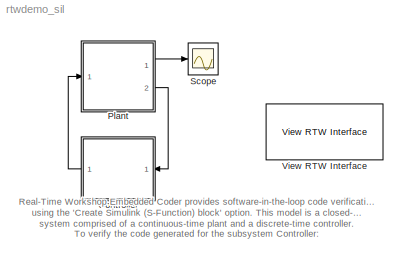
MODEL rtwdemo_sil
KIND model
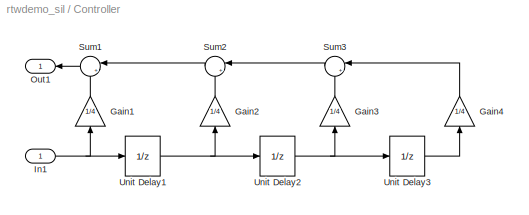
BLOCK [SubSystem] Controller
  MinAlgLoopOccurrences = off
  Ports = [1, 1]
  PropExecContextAcrossSSBoundary = on
  RTWFcnNameOpts = Use subsystem name
  RTWFileNameOpts = Use function name
  RTWSystemCode = Auto
  TreatAsAtomicUnit = on
BLOCK [Gain] Controller/Gain1
  Gain = 1/4
BLOCK [Gain] Controller/Gain2
  Gain = 1/4
BLOCK [Gain] Controller/Gain3
  Gain = 1/4
BLOCK [Gain] Controller/Gain4
  Gain = 1/4
BLOCK [Inport] Controller/In1
  IconDisplay = Port number
  LatchInput = off
  Port = 1
  SampleTime = .01
BLOCK [Outport] Controller/Out1
  BusOutputAsStruct = off
  IconDisplay = Port number
BLOCK [Sum] Controller/Sum1
  IconShape = round
  Inputs = |++
  Ports = [2, 1]
BLOCK [Sum] Controller/Sum2
  IconShape = round
  Inputs = |++
  Ports = [2, 1]
BLOCK [Sum] Controller/Sum3
  IconShape = round
  Inputs = |++
  Ports = [2, 1]
BLOCK [UnitDelay] Controller/Unit Delay1
  SampleTime = -1
BLOCK [UnitDelay] Controller/Unit Delay2
  SampleTime = -1
BLOCK [UnitDelay] Controller/Unit Delay3
  SampleTime = -1
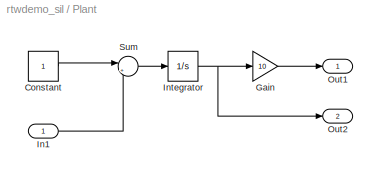
BLOCK [SubSystem] Plant
  MinAlgLoopOccurrences = off
  Ports = [1, 2]
  PropExecContextAcrossSSBoundary = on
  RTWSystemCode = Auto
  TreatAsAtomicUnit = off
BLOCK [Constant] Plant/Constant
BLOCK [Gain] Plant/Gain
  Gain = 10
BLOCK [Inport] Plant/In1
  IconDisplay = Port number
  LatchInput = off
  Port = 1
BLOCK [Integrator] Plant/Integrator
  Ports = [1, 1]
BLOCK [Outport] Plant/Out1
  BusOutputAsStruct = off
  IconDisplay = Port number
BLOCK [Outport] Plant/Out2
  BusOutputAsStruct = off
  IconDisplay = Port number
  Port = 2
BLOCK [Sum] Plant/Sum
  IconShape = round
  Inputs = |+-
  Ports = [2, 1]
BLOCK [Scope] Scope
  DataFormat = StructureWithTime
  NumInputPorts = 1
  Ports = [1]
  TimeRange = 5
  YMax = 10
  YMin = 0
BLOCK [Reference] View RTW Interface  REF=rtwdemowidgets/View RTW Interface
  Ports = []
  ShowPortLabels = on
  SourceBlock = rtwdemowidgets/View RTW Interface
ANNOTATION (root): Real-Time Workshop Embedded Coder provides software-in-the-loop code verification for subsystems\nusing the 'Create Simulink (S-Function) block' option. This model is a closed-loop control\nsystem comprised of a continuous-time plant and a discrete-time controller.\n\nTo verify the code generated for the subsystem Controller:\n\n1) Open the Real-Time Workshop Interface page by double-clicking abov...<+569ch>
LINE Controller/Gain1:1 -> Controller/Sum1:2
LINE Controller/Gain2:1 -> Controller/Sum2:2
LINE Controller/Gain3:1 -> Controller/Sum3:2
LINE Controller/Gain4:1 -> Controller/Sum3:1
NET Controller/In1:1 -> Controller/Gain1:1, Controller/Unit Delay1:1
LINE Controller/Sum1:1 -> Controller/Out1:1
LINE Controller/Sum2:1 -> Controller/Sum1:1
LINE Controller/Sum3:1 -> Controller/Sum2:1
NET Controller/Unit Delay1:1 -> Controller/Gain2:1, Controller/Unit Delay2:1
NET Controller/Unit Delay2:1 -> Controller/Gain3:1, Controller/Unit Delay3:1
LINE Controller/Unit Delay3:1 -> Controller/Gain4:1
LINE Controller:1 -> Plant:1
LINE Plant/Constant:1 -> Plant/Sum:1
LINE Plant/Gain:1 -> Plant/Out1:1
LINE Plant/In1:1 -> Plant/Sum:2
NET Plant/Integrator:1 -> Plant/Gain:1, Plant/Out2:1
LINE Plant/Sum:1 -> Plant/Integrator:1
LINE Plant:1 -> Scope:1
LINE Plant:2 -> Controller:1
note: NET lines group one-source signal fan-out (src -> all destinations, sorted); 1:1 wires keep LINE
